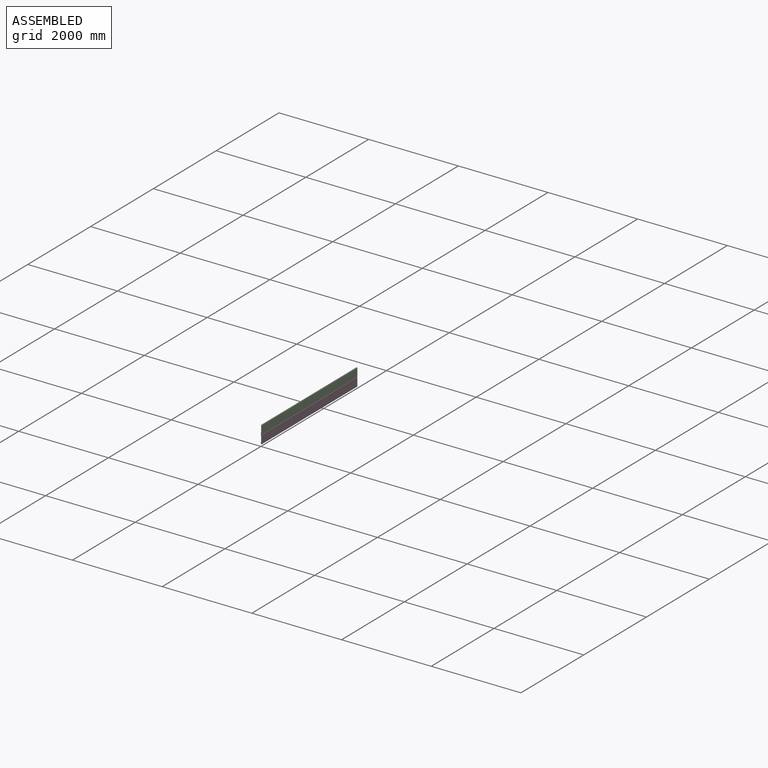
[diagram: assembled view]
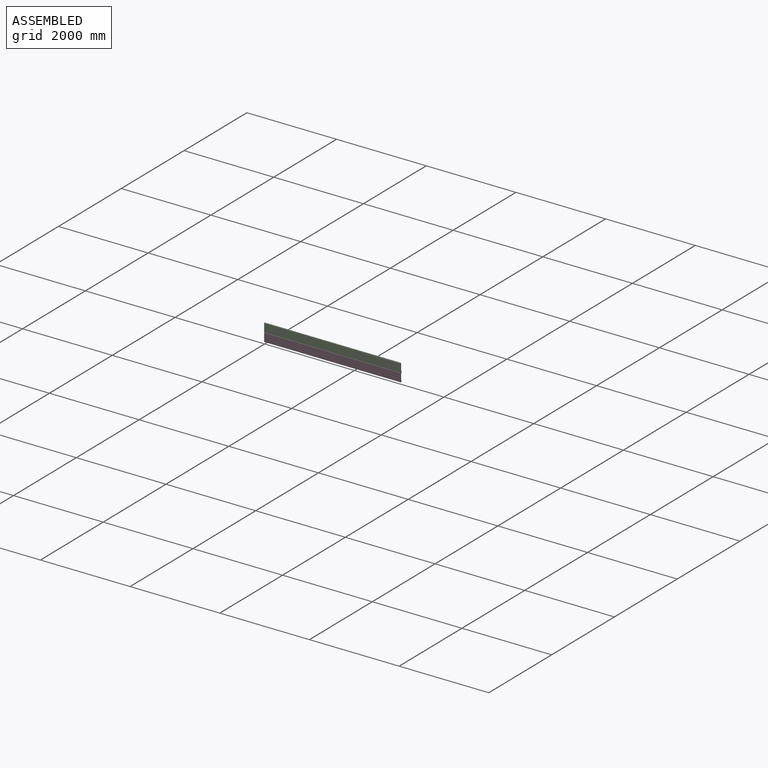
[diagram: assembled view, second angle]
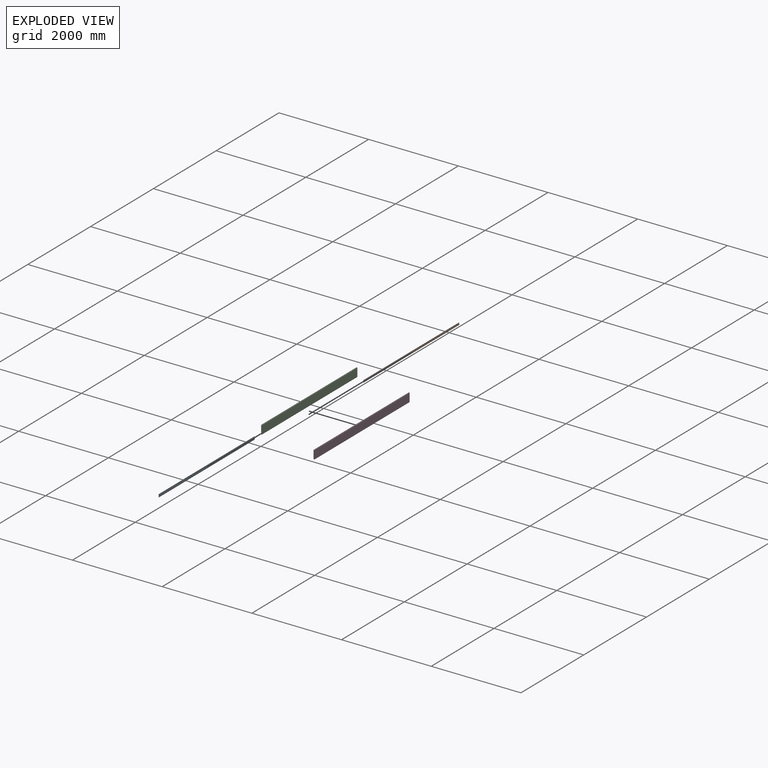
[diagram: exploded view]
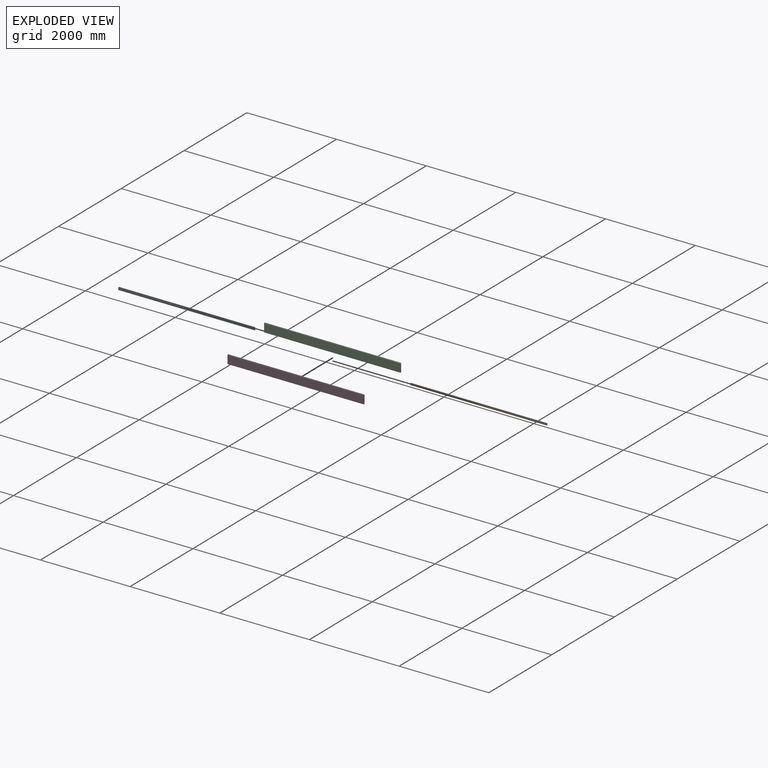
[diagram: exploded view, second angle]
ASSEMBLY  parts=4 mates=3
PART A: 54 faces, bbox 13x3048x63.5 mm
  f0: plane 3048x2.9mm, normal (0,0,-1), area 8839.2mm2, adj f1,f11,f12,f13
  f1: plane 3048x20.5mm, normal (1,0,0), area 61771.4mm2, adj f0,f2,f12,f13,f15,f19,f23,f27
  f2: plane 3048x2.9mm, normal (0,0,1), area 8839.2mm2, adj f1,f3,f12,f13
  f3: plane 3048x5mm, normal (-1,0,0), area 15240mm2, adj f2,f4,f12,f13
  f4: plane 3048x3.7mm, normal (0,0,1), area 11277.6mm2, adj f3,f5,f12,f13
  f5: plane 3048x26.5mm, normal (1,0,0), area 80059.4mm2, adj f4,f6,f12,f13,f17,f21,f25,f29
  f6: plane 3048x6.35mm, normal (0,0,1), area 19354.8mm2, adj f5,f7,f12,f13
  f7: plane 3048x63.5mm, normal (-1,0,0), area 193063.1mm2, adj f6,f8,f12,f13,f14,f16,f18,f20
  f8: plane 3048x6.35mm, normal (0,0,-1), area 19354.8mm2, adj f7,f9,f12,f13
  f9: plane 3048x26.5mm, normal (1,0,0), area 80772mm2, adj f8,f10,f12,f13
  f10: plane 3048x3.7mm, normal (0,0,-1), area 11277.6mm2, adj f9,f11,f12,f13
  f11: plane 3048x5mm, normal (-1,0,0), area 15240mm2, adj f0,f10,f12,f13
  f12: plane 63.5x12.95mm, normal (0,-1,0), area 501.5mm2, adj f0,f1,f2,f3,f4,f5,f6,f7
  f13: plane 63.5x12.95mm, normal (0,1,0), area 501.5mm2, adj f0,f1,f2,f3,f4,f5,f6,f7
  f14: cylinder r=2.78mm len=10.97mm, axis (1,0,0), area 191.4mm2, adj f7,f15
  f15: cone r=2.78mm half-angle=45deg, axis (1,0,0), area 66.5mm2, adj f1,f14
  f16: cylinder r=2.78mm len=5.56mm, axis (1,0,0), area 76.2mm2, adj f7,f17
  f17: cone r=2.78mm half-angle=45deg, axis (1,0,0), area 66.5mm2, adj f5,f16
  f18: cylinder r=2.78mm len=10.97mm, axis (1,0,0), area 191.4mm2, adj f7,f19
  f19: cone r=2.78mm half-angle=45deg, axis (1,0,0), area 66.5mm2, adj f1,f18
  f20: cylinder r=2.78mm len=5.56mm, axis (1,0,0), area 76.2mm2, adj f7,f21
  f21: cone r=2.78mm half-angle=45deg, axis (1,0,0), area 66.5mm2, adj f5,f20
  f22: cylinder r=2.78mm len=10.97mm, axis (1,0,0), area 191.4mm2, adj f7,f23
  f23: cone r=2.78mm half-angle=45deg, axis (1,0,0), area 66.5mm2, adj f1,f22
  f24: cylinder r=2.78mm len=5.56mm, axis (1,0,0), area 76.2mm2, adj f7,f25
  f25: cone r=2.78mm half-angle=45deg, axis (1,0,0), area 66.5mm2, adj f5,f24
  f26: cylinder r=2.78mm len=10.97mm, axis (1,0,0), area 191.4mm2, adj f7,f27
  f27: cone r=2.78mm half-angle=45deg, axis (1,0,0), area 66.5mm2, adj f1,f26
  f28: cylinder r=2.78mm len=5.56mm, axis (1,0,0), area 76.2mm2, adj f7,f29
  f29: cone r=2.78mm half-angle=45deg, axis (1,0,0), area 66.5mm2, adj f5,f28
  f30: cylinder r=2.78mm len=10.97mm, axis (1,0,0), area 191.4mm2, adj f7,f31
  f31: cone r=2.78mm half-angle=45deg, axis (1,0,0), area 66.5mm2, adj f1,f30
  f32: cylinder r=2.78mm len=5.56mm, axis (1,0,0), area 76.2mm2, adj f7,f33
  f33: cone r=2.78mm half-angle=45deg, axis (1,0,0), area 66.5mm2, adj f5,f32
  f34: cylinder r=2.78mm len=10.97mm, axis (1,0,0), area 191.4mm2, adj f7,f35
  f35: cone r=2.78mm half-angle=45deg, axis (1,0,0), area 66.5mm2, adj f1,f34
  f36: cylinder r=2.78mm len=5.56mm, axis (1,0,0), area 76.2mm2, adj f7,f37
  f37: cone r=2.78mm half-angle=45deg, axis (1,0,0), area 66.5mm2, adj f5,f36
  f38: cylinder r=2.78mm len=10.97mm, axis (1,0,0), area 191.4mm2, adj f7,f39
  f39: cone r=2.78mm half-angle=45deg, axis (1,0,0), area 66.5mm2, adj f1,f38
  f40: cylinder r=2.78mm len=5.56mm, axis (1,0,0), area 76.2mm2, adj f7,f41
  f41: cone r=2.78mm half-angle=45deg, axis (1,0,0), area 66.5mm2, adj f5,f40
  f42: cylinder r=2.78mm len=10.97mm, axis (1,0,0), area 191.4mm2, adj f7,f43
  f43: cone r=2.78mm half-angle=45deg, axis (1,0,0), area 66.5mm2, adj f1,f42
  f44: cylinder r=2.78mm len=5.56mm, axis (1,0,0), area 76.2mm2, adj f7,f45
  f45: cone r=2.78mm half-angle=45deg, axis (1,0,0), area 66.5mm2, adj f5,f44
  f46: cylinder r=2.78mm len=10.97mm, axis (1,0,0), area 191.4mm2, adj f7,f47
  f47: cone r=2.78mm half-angle=45deg, axis (1,0,0), area 66.5mm2, adj f1,f46
  f48: cylinder r=2.78mm len=5.56mm, axis (1,0,0), area 76.2mm2, adj f7,f49
  f49: cone r=2.78mm half-angle=45deg, axis (1,0,0), area 66.5mm2, adj f5,f48
  f50: cylinder r=2.78mm len=10.97mm, axis (1,0,0), area 191.4mm2, adj f7,f51
  f51: cone r=2.78mm half-angle=45deg, axis (1,0,0), area 66.5mm2, adj f1,f50
  f52: cylinder r=2.78mm len=5.56mm, axis (1,0,0), area 76.2mm2, adj f7,f53
  f53: cone r=2.78mm half-angle=45deg, axis (1,0,0), area 66.5mm2, adj f5,f52
PART B: 54 faces, bbox 13x3048x42 mm
  f0: plane 3048x42mm, normal (-1,0,0), area 127531.1mm2, adj f2,f3,f10,f13,f15,f17,f19,f21
  f1: plane 3048x5mm, normal (1,0,0), area 15240mm2, adj f2,f3,f11,f53
  f2: plane 42x12.95mm, normal (0,-1,0), area 365mm2, adj f0,f1,f4,f5,f6,f7,f8,f9
  f3: plane 42x12.95mm, normal (0,1,0), area 365mm2, adj f0,f1,f4,f5,f6,f7,f8,f9
  f4: plane 3048x2.9mm, normal (0,0,-1), area 8839.2mm2, adj f2,f3,f5,f12
  f5: plane 3048x20.5mm, normal (1,0,0), area 61771.4mm2, adj f2,f3,f4,f6,f14,f18,f22,f26
  f6: plane 3048x2.9mm, normal (0,0,1), area 8839.2mm2, adj f2,f3,f5,f7
  f7: plane 3048x5mm, normal (-1,0,0), area 15240mm2, adj f2,f3,f6,f8
  f8: plane 3048x3.7mm, normal (0,0,1), area 11277.6mm2, adj f2,f3,f7,f9
  f9: plane 3048x26.5mm, normal (1,0,0), area 80059.4mm2, adj f2,f3,f8,f10,f16,f20,f24,f28
  f10: plane 3048x6.35mm, normal (0,0,1), area 19354.8mm2, adj f0,f2,f3,f9
  f11: plane 3048x3.7mm, normal (0,0,-1), area 11277.6mm2, adj f1,f2,f3,f12
  f12: plane 3048x5mm, normal (-1,0,0), area 15240mm2, adj f2,f3,f4,f11
  f13: cylinder r=2.78mm len=10.97mm, axis (1,0,0), area 191.4mm2, adj f0,f14
  f14: cone r=2.78mm half-angle=45deg, axis (1,0,0), area 66.5mm2, adj f5,f13
  f15: cylinder r=2.78mm len=5.56mm, axis (1,0,0), area 76.2mm2, adj f0,f16
  f16: cone r=2.78mm half-angle=45deg, axis (1,0,0), area 66.5mm2, adj f9,f15
  f17: cylinder r=2.78mm len=10.97mm, axis (1,0,0), area 191.4mm2, adj f0,f18
  f18: cone r=2.78mm half-angle=45deg, axis (1,0,0), area 66.5mm2, adj f5,f17
  f19: cylinder r=2.78mm len=5.56mm, axis (1,0,0), area 76.2mm2, adj f0,f20
  f20: cone r=2.78mm half-angle=45deg, axis (1,0,0), area 66.5mm2, adj f9,f19
  f21: cylinder r=2.78mm len=10.97mm, axis (1,0,0), area 191.4mm2, adj f0,f22
  f22: cone r=2.78mm half-angle=45deg, axis (1,0,0), area 66.5mm2, adj f5,f21
  f23: cylinder r=2.78mm len=5.56mm, axis (1,0,0), area 76.2mm2, adj f0,f24
  f24: cone r=2.78mm half-angle=45deg, axis (1,0,0), area 66.5mm2, adj f9,f23
  f25: cylinder r=2.78mm len=10.97mm, axis (1,0,0), area 191.4mm2, adj f0,f26
  f26: cone r=2.78mm half-angle=45deg, axis (1,0,0), area 66.5mm2, adj f5,f25
  f27: cylinder r=2.78mm len=5.56mm, axis (1,0,0), area 76.2mm2, adj f0,f28
  f28: cone r=2.78mm half-angle=45deg, axis (1,0,0), area 66.5mm2, adj f9,f27
  f29: cylinder r=2.78mm len=10.97mm, axis (1,0,0), area 191.4mm2, adj f0,f30
  f30: cone r=2.78mm half-angle=45deg, axis (1,0,0), area 66.5mm2, adj f5,f29
  f31: cylinder r=2.78mm len=5.56mm, axis (1,0,0), area 76.2mm2, adj f0,f32
  f32: cone r=2.78mm half-angle=45deg, axis (1,0,0), area 66.5mm2, adj f9,f31
  f33: cylinder r=2.78mm len=10.97mm, axis (1,0,0), area 191.4mm2, adj f0,f34
  f34: cone r=2.78mm half-angle=45deg, axis (1,0,0), area 66.5mm2, adj f5,f33
  f35: cylinder r=2.78mm len=5.56mm, axis (1,0,0), area 76.2mm2, adj f0,f36
  f36: cone r=2.78mm half-angle=45deg, axis (1,0,0), area 66.5mm2, adj f9,f35
  f37: cylinder r=2.78mm len=10.97mm, axis (1,0,0), area 191.4mm2, adj f0,f38
  f38: cone r=2.78mm half-angle=45deg, axis (1,0,0), area 66.5mm2, adj f5,f37
  f39: cylinder r=2.78mm len=5.56mm, axis (1,0,0), area 76.2mm2, adj f0,f40
  f40: cone r=2.78mm half-angle=45deg, axis (1,0,0), area 66.5mm2, adj f9,f39
  f41: cylinder r=2.78mm len=10.97mm, axis (1,0,0), area 191.4mm2, adj f0,f42
  f42: cone r=2.78mm half-angle=45deg, axis (1,0,0), area 66.5mm2, adj f5,f41
  f43: cylinder r=2.78mm len=5.56mm, axis (1,0,0), area 76.2mm2, adj f0,f44
  f44: cone r=2.78mm half-angle=45deg, axis (1,0,0), area 66.5mm2, adj f9,f43
  f45: cylinder r=2.78mm len=10.97mm, axis (1,0,0), area 191.4mm2, adj f0,f46
  f46: cone r=2.78mm half-angle=45deg, axis (1,0,0), area 66.5mm2, adj f5,f45
  f47: cylinder r=2.78mm len=5.56mm, axis (1,0,0), area 76.2mm2, adj f0,f48
  f48: cone r=2.78mm half-angle=45deg, axis (1,0,0), area 66.5mm2, adj f9,f47
  f49: cylinder r=2.78mm len=10.97mm, axis (1,0,0), area 191.4mm2, adj f0,f50
  f50: cone r=2.78mm half-angle=45deg, axis (1,0,0), area 66.5mm2, adj f5,f49
  f51: cylinder r=2.78mm len=5.56mm, axis (1,0,0), area 76.2mm2, adj f0,f52
  f52: cone r=2.78mm half-angle=45deg, axis (1,0,0), area 66.5mm2, adj f9,f51
  f53: plane 3048x6.35mm, normal (0,0,-1), area 19354.8mm2, adj f0,f1,f2,f3
PART C: 12 faces, bbox 10.2x3048x196.9 mm
  f0: plane 3048x186.52mm, normal (1,0,0), area 568512.5mm2, adj f1,f9,f10,f11
  f1: plane 3048x6.59mm, normal (0.26,0,0.97), area 20789mm2, adj f0,f2,f10,f11
  f2: plane 3048x8.64mm, normal (1,0,0), area 26338mm2, adj f1,f3,f10,f11
  f3: plane 3048x3.57mm, normal (0,0,1), area 10887.1mm2, adj f2,f4,f10,f11
  f4: plane 3048x181.03mm, normal (-1,0,0), area 551767.9mm2, adj f3,f5,f10,f11
  f5: plane 3048x3.57mm, normal (0,0,-1), area 10887.1mm2, adj f4,f6,f10,f11
  f6: plane 3048x5.1mm, normal (1,0,0), area 15544.8mm2, adj f5,f7,f10,f11
  f7: plane 3048x3.02mm, normal (0,0,-1), area 9193.5mm2, adj f6,f8,f10,f11
  f8: plane 3048x21mm, normal (-1,0,0), area 64008mm2, adj f7,f9,f10,f11
  f9: plane 3048x3.57mm, normal (0,0,-1), area 10887.1mm2, adj f0,f8,f10,f11
  f10: plane 196.93x10.16mm, normal (0,-1,0), area 1817.9mm2, adj f0,f1,f2,f3,f4,f5,f6,f7
  f11: plane 196.93x10.16mm, normal (0,1,0), area 1817.9mm2, adj f0,f1,f2,f3,f4,f5,f6,f7
PART D: same geometry as C
PLACE A t=(6.35,3048,202.78)mm
PLACE B t=(6.35,3048,111.85)mm
PLACE C t=(6.41,3048,175.62)mm
PLACE D t=(6.41,3048,-16.91)mm
MATE fastened C.f10 <-> A.f12  axis (0,-1,0) through (6.41,0,208.03)mm
MATE fastened A.f12 <-> D.f10  axis (0,-1,0) through (6.35,0,197.53)mm
MATE fastened D.f10 <-> B.f2  axis (0,-1,0) through (6.41,0,15.5)mm
